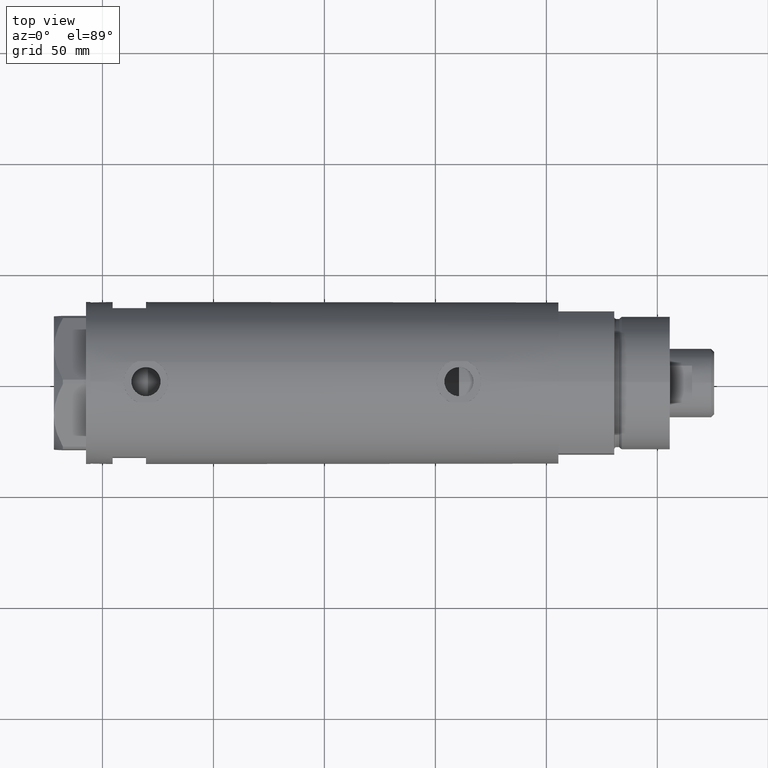
[diagram: clean part render]
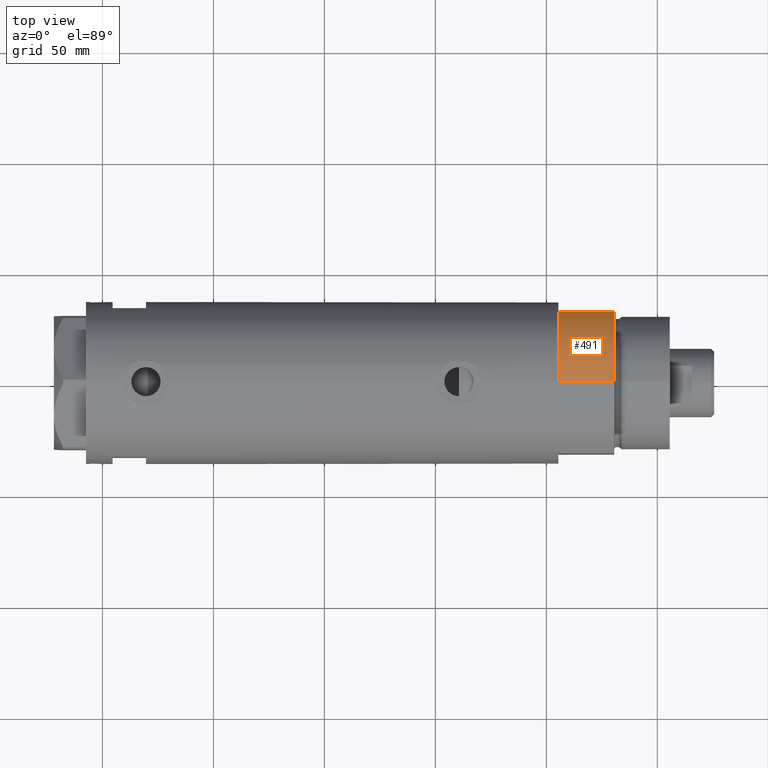
[diagram: same view with one face highlighted and labeled with its STEP entity id]
A machine part, top view. The second image highlights one B-rep face of the part: STEP entity #491.
In plain terms, the highlighted cylindrical surface (partial cylindrical patch) has radius 36.5 mm, axis along (-1, -0, 0).
Its self-contained STEP definition (entity closure, byte-faithful):
#19 = EDGE_LOOP ( 'NONE', ( #4389, #1013, #4398, #4785 ) ) ;
#115 = CARTESIAN_POINT ( 'NONE',  ( -17.55704986607943141, 32.00000000000000000, 0.000000000000000000 ) ) ;
#246 = DIRECTION ( 'NONE',  ( 1.000000000000000000, 0.000000000000000000, 0.000000000000000000 ) ) ;
#339 = CARTESIAN_POINT ( 'NONE',  ( -17.55704986607943496, 32.00000000000000000, 25.19999999999999929 ) ) ;
#491 = ADVANCED_FACE ( 'NONE', ( #1740 ), #858, .T. ) ;
#673 = DIRECTION ( 'NONE',  ( -0.000000000000000000, -0.000000000000000000, 1.000000000000000000 ) ) ;
#726 = CARTESIAN_POINT ( 'NONE',  ( 0.000000000000000000, 0.000000000000000000, 25.19999999999999929 ) ) ;
#790 = CARTESIAN_POINT ( 'NONE',  ( 0.000000000000000000, 0.000000000000000000, 25.19999999999999929 ) ) ;
#858 = CYLINDRICAL_SURFACE ( 'NONE', #4744, 36.50000000000000000 ) ;
#994 = CARTESIAN_POINT ( 'NONE',  ( -36.50000000000000000, 0.000000000000000000, 25.19999999999999929 ) ) ;
#1013 = ORIENTED_EDGE ( 'NONE', *, *, #1664, .F. ) ;
#1362 = VERTEX_POINT ( 'NONE', #994 ) ;
#1453 = EDGE_CURVE ( 'NONE', #5351, #2907, #1587, .T. ) ;
#1460 = DIRECTION ( 'NONE',  ( 0.000000000000000000, 0.000000000000000000, 1.000000000000000000 ) ) ;
#1587 = LINE ( 'NONE', #115, #4367 ) ;
#1664 = EDGE_CURVE ( 'NONE', #2907, #1362, #5524, .T. ) ;
#1740 = FACE_OUTER_BOUND ( 'NONE', #19, .T. ) ;
#1936 = CARTESIAN_POINT ( 'NONE',  ( -36.50000000000000000, 0.000000000000000000, 25.19999999999999929 ) ) ;
#2086 = AXIS2_PLACEMENT_3D ( 'NONE', #4293, #1460, #4321 ) ;
#2342 = EDGE_CURVE ( 'NONE', #1362, #3797, #2396, .T. ) ;
#2396 = LINE ( 'NONE', #1936, #3988 ) ;
#2654 = DIRECTION ( 'NONE',  ( -1.000000000000000000, 0.000000000000000000, 0.000000000000000000 ) ) ;
#2854 = AXIS2_PLACEMENT_3D ( 'NONE', #726, #4026, #246 ) ;
#2907 = VERTEX_POINT ( 'NONE', #339 ) ;
#3350 = CIRCLE ( 'NONE', #2086, 36.50000000000000000 ) ;
#3585 = DIRECTION ( 'NONE',  ( -0.000000000000000000, -0.000000000000000000, -1.000000000000000000 ) ) ;
#3777 = DIRECTION ( 'NONE',  ( -0.000000000000000000, -0.000000000000000000, -1.000000000000000000 ) ) ;
#3797 = VERTEX_POINT ( 'NONE', #4868 ) ;
#3988 = VECTOR ( 'NONE', #3777, 1000.000000000000000 ) ;
#4026 = DIRECTION ( 'NONE',  ( 0.000000000000000000, 0.000000000000000000, 1.000000000000000000 ) ) ;
#4293 = CARTESIAN_POINT ( 'NONE',  ( 0.000000000000000000, 0.000000000000000000, 0.000000000000000000 ) ) ;
#4321 = DIRECTION ( 'NONE',  ( 1.000000000000000000, 0.000000000000000000, 0.000000000000000000 ) ) ;
#4367 = VECTOR ( 'NONE', #673, 1000.000000000000000 ) ;
#4389 = ORIENTED_EDGE ( 'NONE', *, *, #2342, .F. ) ;
#4398 = ORIENTED_EDGE ( 'NONE', *, *, #1453, .F. ) ;
#4662 = CARTESIAN_POINT ( 'NONE',  ( -17.55704986607943141, 32.00000000000000000, 0.000000000000000000 ) ) ;
#4744 = AXIS2_PLACEMENT_3D ( 'NONE', #790, #3585, #2654 ) ;
#4785 = ORIENTED_EDGE ( 'NONE', *, *, #5637, .T. ) ;
#4868 = CARTESIAN_POINT ( 'NONE',  ( -36.50000000000000000, 0.000000000000000000, 0.000000000000000000 ) ) ;
#5351 = VERTEX_POINT ( 'NONE', #4662 ) ;
#5524 = CIRCLE ( 'NONE', #2854, 36.50000000000000000 ) ;
#5637 = EDGE_CURVE ( 'NONE', #5351, #3797, #3350, .T. ) ;